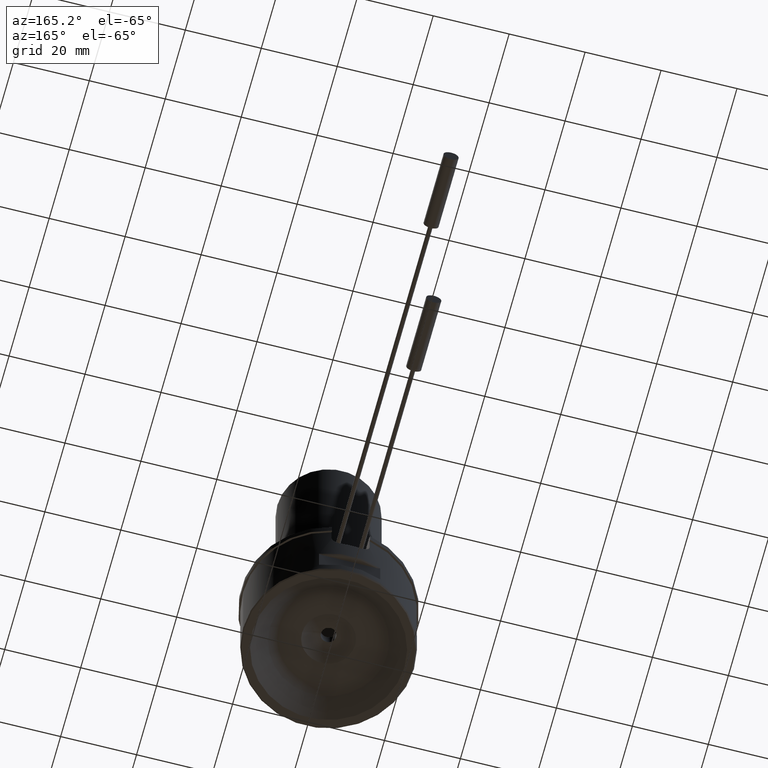
[diagram: clean part render]
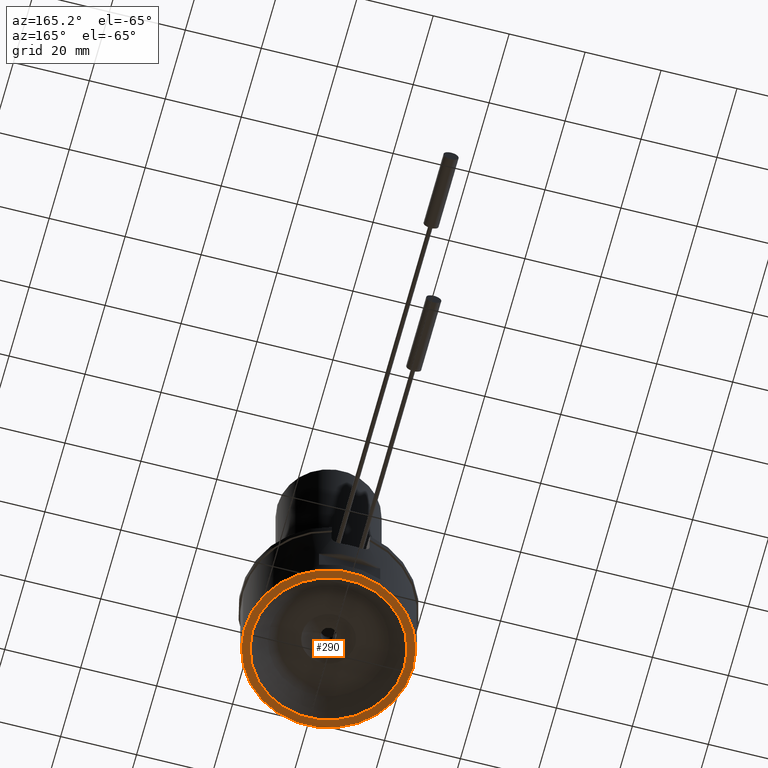
[diagram: same view with one face highlighted and labeled with its STEP entity id]
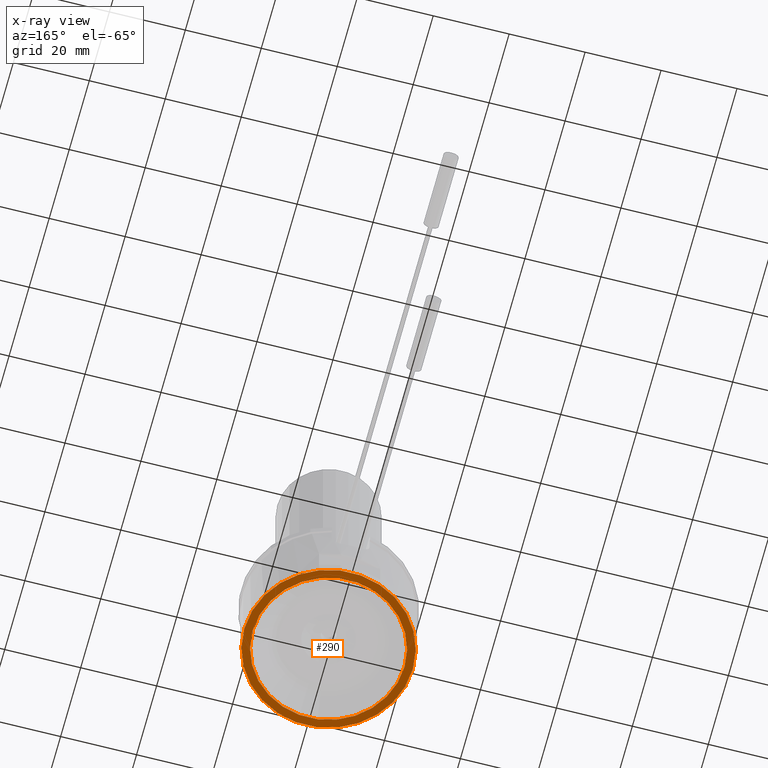
[diagram: x-ray of the same camera — body ghosted, the highlighted face saturated]
A machine part, auxiliary view. The second image highlights one B-rep face of the part: STEP entity #290.
The next image is the same camera in x-ray: the body ghosted, the highlighted face saturated — about 0% of this face is hidden behind the body in this view.
In plain terms, the highlighted planar face has unit normal (0, 0, 1).
Its self-contained STEP definition (entity closure, byte-faithful):
#197=PLANE('',#1170);
#290=ADVANCED_FACE('',(#379,#380),#197,.F.);
#379=FACE_BOUND('',#458,.T.);
#380=FACE_BOUND('',#459,.T.);
#458=EDGE_LOOP('',(#627));
#459=EDGE_LOOP('',(#628));
#627=ORIENTED_EDGE('',*,*,#971,.T.);
#628=ORIENTED_EDGE('',*,*,#972,.T.);
#863=VERTEX_POINT('',#1880);
#864=VERTEX_POINT('',#1882);
#971=EDGE_CURVE('',#863,#863,#1061,.T.);
#972=EDGE_CURVE('',#864,#864,#1062,.T.);
#1061=CIRCLE('',#1168,22.2);
#1062=CIRCLE('',#1169,20.);
#1168=AXIS2_PLACEMENT_3D('',#1879,#1400,#1401);
#1169=AXIS2_PLACEMENT_3D('',#1881,#1402,#1403);
#1170=AXIS2_PLACEMENT_3D('',#1883,#1404,#1405);
#1400=DIRECTION('',(0.,0.,-1.));
#1401=DIRECTION('',(1.,0.,0.));
#1402=DIRECTION('',(0.,0.,1.));
#1403=DIRECTION('',(1.,0.,0.));
#1404=DIRECTION('',(0.,0.,1.));
#1405=DIRECTION('',(1.,0.,0.));
#1879=CARTESIAN_POINT('',(0.,0.,-1.13697348706672E-14));
#1880=CARTESIAN_POINT('',(22.2,0.,-1.13697348706672E-14));
#1881=CARTESIAN_POINT('',(0.,0.,6.07153216591882E-15));
#1882=CARTESIAN_POINT('',(20.,0.,6.07153216591882E-15));
#1883=CARTESIAN_POINT('',(0.,0.,-1.13697348706672E-14));